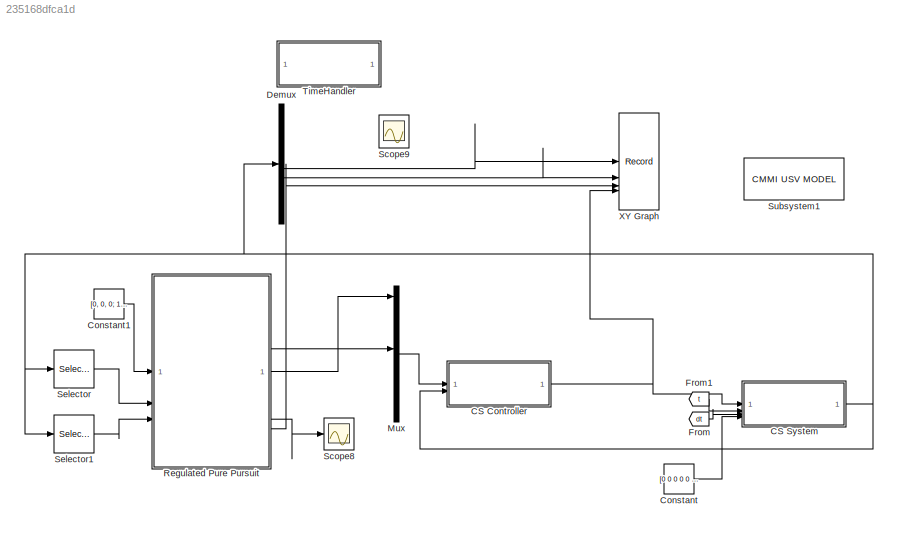
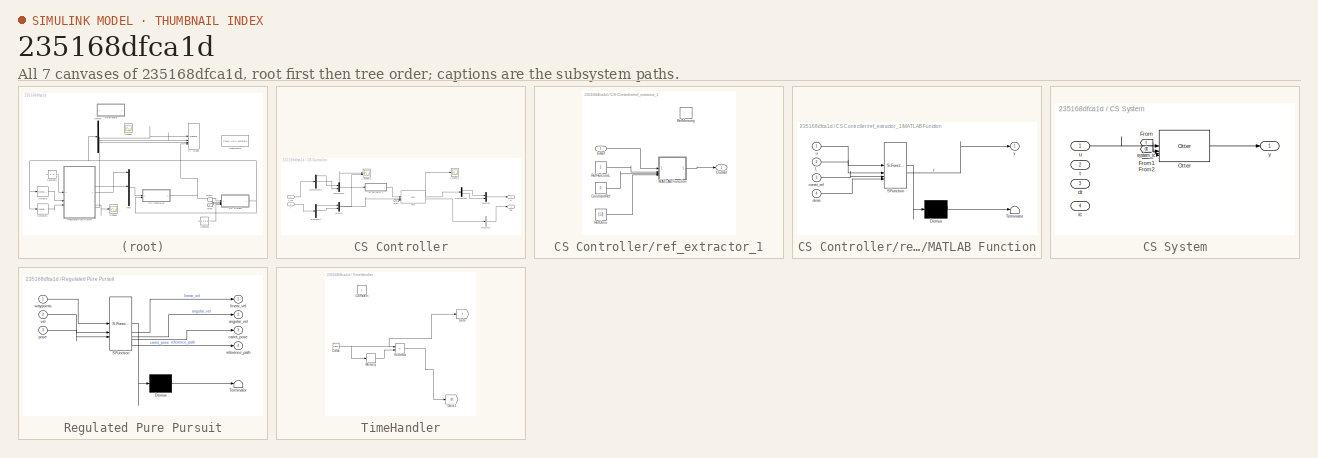
[diagram: thumbnail index - all 7 canvases of the model, root first then tree order]
MODEL slx_235168dfca1d
KIND model
CONFIG AbsTol = auto
CONFIG EnableMultiTasking = off
CONFIG FixedStep = 0.05
CONFIG InitFcn = on_model_start
CONFIG MaxStep = auto
CONFIG MinStep = auto
CONFIG PostLoadFcn = on_model_load
CONFIG RelTol = 1e-3
CONFIG SampleTimeConstraint = Unconstrained
CONFIG SolverName = FixedStepAuto
CONFIG StartTime = 0.0
CONFIG StopFcn = on_simulation_done
CONFIG StopTime = 130
WORKSPACE source: mxarray member
WORKSPACE ActiveExperiment: object (value not decoded)
WORKSPACE Experiments: object (value not decoded)
WORKSPACE GlobalReference = 0
WORKSPACE callbacks: dictionary (value not decoded)
WORKSPACE env_name = 'RPP_PID'
WORKSPACE extrinsic = 1
WORKSPACE gen_blocks: object (value not decoded)
WORKSPACE gen_data_dictionary: Simulink.data.Dictionary (value not decoded)
WORKSPACE id_to_params_path_map: dictionary (value not decoded)
WORKSPACE model_info: object (value not decoded)
WORKSPACE model_type = 'scenario'
WORKSPACE old_params: object (value not decoded)
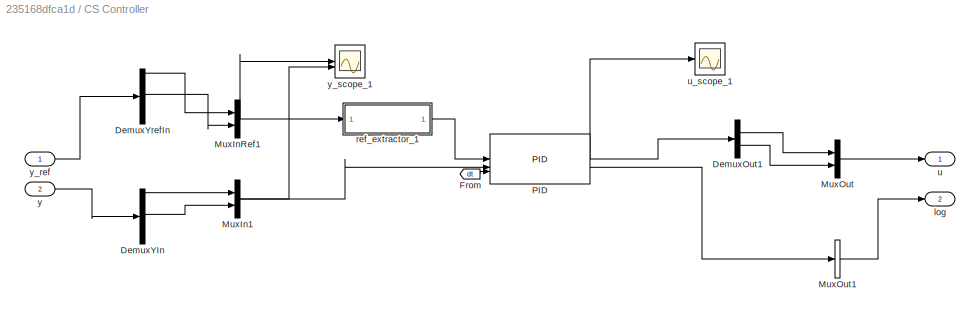
BLOCK [SubSystem] CS Controller
  Tag = __cs_template;__cs_comptype:ctl
BLOCK [Demux] CS Controller/DemuxOut1
  Outputs = 2
BLOCK [Demux] CS Controller/DemuxYIn
  Outputs = 12
BLOCK [Demux] CS Controller/DemuxYrefIn
  Outputs = 12
BLOCK [From] CS Controller/From
  GotoTag = dt
  TagVisibility = global
BLOCK [Mux] CS Controller/MuxIn1
  DisplayOption = bar
  Inputs = 2
BLOCK [Mux] CS Controller/MuxInRef1
  DisplayOption = bar
  Inputs = 2
BLOCK [Mux] CS Controller/MuxOut
  DisplayOption = bar
  Inputs = 2
BLOCK [BusCreator] CS Controller/MuxOut1
  DisplayOption = bar
  InheritFromInputs = on
  Inputs = 1
BLOCK [Reference] CS Controller/PID  REF=csbenchlab_ctl/PID
  SourceBlock = csbenchlab_ctl/PID
  Tag = __cs_slx_ctl;__cs_comptype:ctl;__cs_compimpl:slx;
BLOCK [Outport] CS Controller/log
  Port = 2
BLOCK [SubSystem] CS Controller/ref_extractor_1
BLOCK [Constant] CS Controller/ref_extractor_1/ConstantRef
  Value = 0
BLOCK [Inport] CS Controller/ref_extractor_1/InRef
BLOCK [SubSystem] CS Controller/ref_extractor_1/MATLAB Function
  ErrorFcn = Stateflow.Translate.translate
  PermitHierarchicalResolution = ExplicitOnly
  SFBlockType = MATLAB Function
  TreatAsAtomicUnit = on
BLOCK [Demux] CS Controller/ref_extractor_1/MATLAB Function/ Demux 
  Outputs = 1
BLOCK [S-Function] CS Controller/ref_extractor_1/MATLAB Function/ SFunction 
  EnableBusSupport = on
  FunctionName = sf_sfun
  Parameters = GlobalReference
  PortCounts = [4 2]
  SFcnIsStateOwnerBlock = off
  SFunctionDeploymentMode = off
  Tag = Stateflow S-Function 7
BLOCK [Terminator] CS Controller/ref_extractor_1/MATLAB Function/ Terminator 
BLOCK [Inport] CS Controller/ref_extractor_1/MATLAB Function/L
  Port = 2
BLOCK [Inport] CS Controller/ref_extractor_1/MATLAB Function/const_ref
  Port = 3
BLOCK [Inport] CS Controller/ref_extractor_1/MATLAB Function/dims
  Port = 4
BLOCK [Inport] CS Controller/ref_extractor_1/MATLAB Function/u
BLOCK [Outport] CS Controller/ref_extractor_1/MATLAB Function/y
BLOCK [Outport] CS Controller/ref_extractor_1/OutRef
BLOCK [Constant] CS Controller/ref_extractor_1/RefDims
  Value = [1 2]
BLOCK [Constant] CS Controller/ref_extractor_1/RefHorizonL
BLOCK [DataStoreMemory] CS Controller/ref_extractor_1/RefMemory
  DataStoreName = ref
  OutDataTypeStr = double
  ShowAdditionalParam = off
  SignalType = real
  WriteAfterWriteMsg = warning
BLOCK [Outport] CS Controller/u
  PortDimensions = 2
BLOCK [Scope] CS Controller/u_scope_1
  Floating = off
  NumInputPorts = 1
  ScopeSpecificationString = Simulink.scopes.TimeScopeBlockCfg
BLOCK [Inport] CS Controller/y
  Port = 2
  PortDimensions = 12
BLOCK [Inport] CS Controller/y_ref
  PortDimensions = 12
BLOCK [Scope] CS Controller/y_scope_1
  Floating = off
  NumInputPorts = 2
  ScopeSpecificationString = Simulink.scopes.TimeScopeBlockCfg
BLOCK [SubSystem] CS System
  Tag = __cs_template;__cs_comptype:sys
BLOCK [From] CS System/From
  GotoTag = t
  TagVisibility = global
BLOCK [From] CS System/From1
  GotoTag = dt
  TagVisibility = global
BLOCK [From] CS System/From2
  GotoTag = system_ic
BLOCK [Reference] CS System/Otter  REF=marine_lib_sys/Otter
  SourceBlock = marine_lib_sys/Otter
  Tag = system;__cs_slx_sys;__cs_comptype:sys;__cs_compimpl:slx;
BLOCK [Inport] CS System/dt
  Port = 3
BLOCK [Inport] CS System/ic
  Port = 4
BLOCK [Inport] CS System/t
  Port = 2
BLOCK [Inport] CS System/u
BLOCK [Outport] CS System/y
BLOCK [Constant] Constant
  Value = [0 0 0 0 0 0 0 0 0 0 0 0]'
BLOCK [Constant] Constant1
  Value = [0, 0, 0; 10, 0, 0; 10 10, 0; 0, 10, 0; 0, 20, 0; 10, 20, 0; 10, 30, 0; 0, 30, 0; 0, 40, 0; 0, 40, 10]
BLOCK [Demux] Demux
  Outputs = 12
BLOCK [From] From
  GotoTag = dt
  TagVisibility = global
BLOCK [From] From1
  GotoTag = t
  TagVisibility = global
BLOCK [Mux] Mux
  DisplayOption = bar
  Inputs = 12
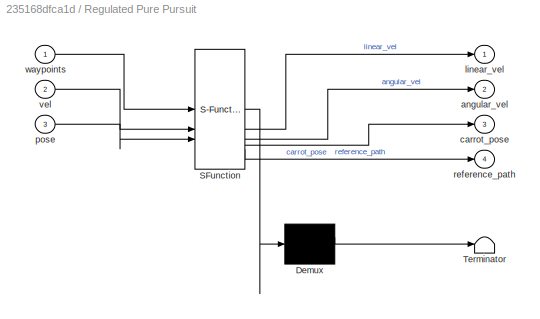
BLOCK [SubSystem] Regulated Pure Pursuit
  ErrorFcn = Stateflow.Translate.translate
  PermitHierarchicalResolution = ExplicitOnly
  SFBlockType = MATLAB Function
  TreatAsAtomicUnit = on
BLOCK [Demux] Regulated Pure Pursuit/ Demux 
  Outputs = 1
BLOCK [S-Function] Regulated Pure Pursuit/ SFunction 
  EnableBusSupport = on
  FunctionName = sf_sfun
  Parameters = params
  PortCounts = [3 5]
  SFcnIsStateOwnerBlock = off
  SFunctionDeploymentMode = off
  Tag = Stateflow S-Function 2
BLOCK [Terminator] Regulated Pure Pursuit/ Terminator 
BLOCK [Outport] Regulated Pure Pursuit/angular_vel
  Port = 2
BLOCK [Outport] Regulated Pure Pursuit/carrot_pose
  Port = 3
BLOCK [Outport] Regulated Pure Pursuit/linear_vel
BLOCK [Inport] Regulated Pure Pursuit/pose
  Port = 3
BLOCK [Outport] Regulated Pure Pursuit/reference_path
  Port = 4
BLOCK [Inport] Regulated Pure Pursuit/vel
  Port = 2
BLOCK [Inport] Regulated Pure Pursuit/waypoints
BLOCK [Scope] Scope8
  Floating = off
  NumInputPorts = 1
  ScopeSpecificationString = Simulink.scopes.TimeScopeBlockCfg('CurrentConfiguration', extmgr.ConfigurationSet(extmgr.Configuration('Core','General UI',true),extmgr.Configuration('Core','Source UI',true),extmgr.Configuration('Sources','WiredSimulink',true,'DataLoggingVariableName','ScopeData2'),extmgr.Configuration('Visuals','Time Domain',true,'SerializedDisplays',{struct('MinYLimReal','-1.03846','MaxYLimReal','1.20415','YLab...<+1476ch>
BLOCK [Scope] Scope9
  Floating = off
  NumInputPorts = 2
  ScopeSpecificationString = Simulink.scopes.TimeScopeBlockCfg('CurrentConfiguration', extmgr.ConfigurationSet(extmgr.Configuration('Core','General UI',true),extmgr.Configuration('Core','Source UI',true),extmgr.Configuration('Sources','WiredSimulink',true,'DataLoggingVariableName','ScopeData3'),extmgr.Configuration('Visuals','Time Domain',true,'SerializedDisplays',{struct('MinYLimReal','-1.00000','MaxYLimReal','1.00000','YLab...<+1768ch>
BLOCK [Selector] Selector
  IndexOptions = Index vector (dialog)
  Indices = [1 2 6]
  InputPortWidth = 12
  OutputSizes = 1
BLOCK [Selector] Selector1
  IndexOptions = Index vector (dialog)
  Indices = [7 8 12]
  InputPortWidth = 12
  OutputSizes = 1
BLOCK [Reference] Subsystem1  REF=cmmi_lib/CMMI USV MODEL  (lib defined in slx_36746e0085bf)
  Commented = on
  SourceBlock = cmmi_lib/CMMI USV MODEL
  SourceType = SubSystem
BLOCK [SubSystem] TimeHandler
BLOCK [Clock] TimeHandler/Clock
BLOCK [Constant] TimeHandler/Constant
BLOCK [Goto] TimeHandler/Goto
  GotoTag = t
  TagVisibility = global
BLOCK [Goto] TimeHandler/Goto1
  GotoTag = dt
  TagVisibility = global
BLOCK [Memory] TimeHandler/Memory
BLOCK [Sum] TimeHandler/Subtract
  IconShape = rectangular
  Inputs = +-
BLOCK [Record] XY Graph
  CompatibilityTag = XY
  FileSettingsInternal = {"entries":[{"content":{"excelSettings":{"content":{},"type":"Streamout.ExcelSettings"}},"type":"Streamout.FileSettingStorage","uuid":""}],"packageUris":["http:\/\/schema.mathworks.com\/mf0\/streamout_blocks\/R2020a"],"version":"1.0"}
  Layout = [1 1]
  SignalsInternal = {"entries":[{"content":{"signals":[{"content":{"blockPath":[],"dimensions":[1],"domain":"","lineColor":"#0072bd","lineWidth":2,"plots":[ 1 ],"port":1,"sid":[""],"signalID":1,"signalName":"Demux:7"},"type":"RecordBlkView.Signal","uuid":""},{"content":{"blockPath":[],"dimensions":[1],"domain":"","lineColor":"#d95319","lineWidth":2,"plots":[ 1 ],"port":2,"sid":[""],"signalID":2,"signalName":"Demux:8"...<+1325ch>
  VisualizationBindings = {"xyplotplugin":{"info":[{"series":[{"bindingParametersList":[{"parameter":"X-Axis","signalID":1,"signalName":"Demux:7"},{"parameter":"Y-Axis","signalID":2,"signalName":"Demux:8"}],"seriesID":0}],"subplotID":1}]}}
LINE CS Controller/DemuxOut1:1 -> CS Controller/MuxOut:1
LINE CS Controller/DemuxOut1:2 -> CS Controller/MuxOut:2
LINE CS Controller/DemuxYIn:1 -> CS Controller/MuxIn1:1
LINE CS Controller/DemuxYIn:6 -> CS Controller/MuxIn1:2
LINE CS Controller/DemuxYrefIn:1 -> CS Controller/MuxInRef1:1
LINE CS Controller/DemuxYrefIn:6 -> CS Controller/MuxInRef1:2
LINE CS Controller/From:1 -> CS Controller/PID:3
NET CS Controller/MuxIn1:1 -> CS Controller/PID:2, CS Controller/y_scope_1:2
NET CS Controller/MuxInRef1:1 -> CS Controller/ref_extractor_1:1, CS Controller/y_scope_1:1
LINE CS Controller/MuxOut1:1 -> CS Controller/log:1
LINE CS Controller/MuxOut:1 -> CS Controller/u:1
NET CS Controller/PID:1 -> CS Controller/DemuxOut1:1, CS Controller/u_scope_1:1
LINE CS Controller/PID:2 -> CS Controller/MuxOut1:1
LINE CS Controller/ref_extractor_1/ConstantRef:1 -> CS Controller/ref_extractor_1/MATLAB Function:3
LINE CS Controller/ref_extractor_1/InRef:1 -> CS Controller/ref_extractor_1/MATLAB Function:1
LINE CS Controller/ref_extractor_1/MATLAB Function:1 -> CS Controller/ref_extractor_1/OutRef:1
LINE CS Controller/ref_extractor_1/RefDims:1 -> CS Controller/ref_extractor_1/MATLAB Function:4
LINE CS Controller/ref_extractor_1/RefHorizonL:1 -> CS Controller/ref_extractor_1/MATLAB Function:2
LINE CS Controller/ref_extractor_1:1 -> CS Controller/PID:1
LINE CS Controller/y:1 -> CS Controller/DemuxYIn:1
LINE CS Controller/y_ref:1 -> CS Controller/DemuxYrefIn:1
NET CS Controller:1 -> CS System:1, XY Graph:4
LINE CS System/From1:1 -> CS System/Otter:3
LINE CS System/From2:1 -> CS System/Otter:4
LINE CS System/From:1 -> CS System/Otter:2
LINE CS System/Otter:1 -> CS System/y:1
LINE CS System/u:1 -> CS System/Otter:1
NET CS System:1 -> CS Controller:2, Demux:1, Selector1:1, Selector:1
LINE Constant1:1 -> Regulated Pure Pursuit:1
LINE Constant:1 -> CS System:4
LINE Demux:7 -> XY Graph:1
LINE Demux:8 -> XY Graph:2
LINE From1:1 -> CS System:2
LINE From:1 -> CS System:3
LINE Mux:1 -> CS Controller:1
LINE Regulated Pure Pursuit:1 -> Mux:1
LINE Regulated Pure Pursuit:2 -> Mux:6
LINE Regulated Pure Pursuit:3 -> Scope8:1
LINE Regulated Pure Pursuit:4 -> XY Graph:3
LINE Selector1:1 -> Regulated Pure Pursuit:3
LINE Selector:1 -> Regulated Pure Pursuit:2
NET TimeHandler/Clock:1 -> TimeHandler/Goto:1, TimeHandler/Memory:1, TimeHandler/Subtract:1
LINE TimeHandler/Memory:1 -> TimeHandler/Subtract:2
LINE TimeHandler/Subtract:1 -> TimeHandler/Goto1:1
note: NET lines group one-source signal fan-out (src -> all destinations, sorted); 1:1 wires keep LINE
CHART Regulated Pure Pursuit states=1 transitions=1
  STATE_LABEL 'eML_blk_kernel()'
  STATE_LABEL 'SCRIPT:\nfunction [linear_vel, angular_vel, carrot_pose, reference_path] = fcn(waypoints, vel, pose, params)\n\n    persistent global_path idx initial_global_path\n    use_waypoints = 0;\n    num_divs = 100;        \n    if isempty(global_path)\n\n        if use_waypoints\n            global_path = zeros((height(waypoints)-1) * num_divs+1, 3);\n            global_path(1, :) = waypoints(1, :);\n            fo...<+1371ch>'
CHART CS Controller/ref_extractor_1/MATLAB Function states=1 transitions=1
  STATE_LABEL 'eML_blk_kernel()'
  STATE_LABEL "SCRIPT:\nfunction y = fcn(u, L, const_ref, dims, GlobalReference)\n\npersistent cnt\nglobal ref\n\nif isempty(cnt)\n    cnt = 0;\nend\n\nif GlobalReference == 0\n    y = repmat(u', 1);\n    return;\nend\n\n\ncnt = cnt+1;\n\nhorizon_end = cnt+L-1;\nif L > 1 \n   if horizon_end > length(GlobalReference)\n        if size(ref, 1) == size(u, 1)\n            y = permute(ref, [2, 1]);\n        else\n            y = ref;\n       ...<+621ch>"
CHART  states=0 transitions=0
CHART  states=0 transitions=0
